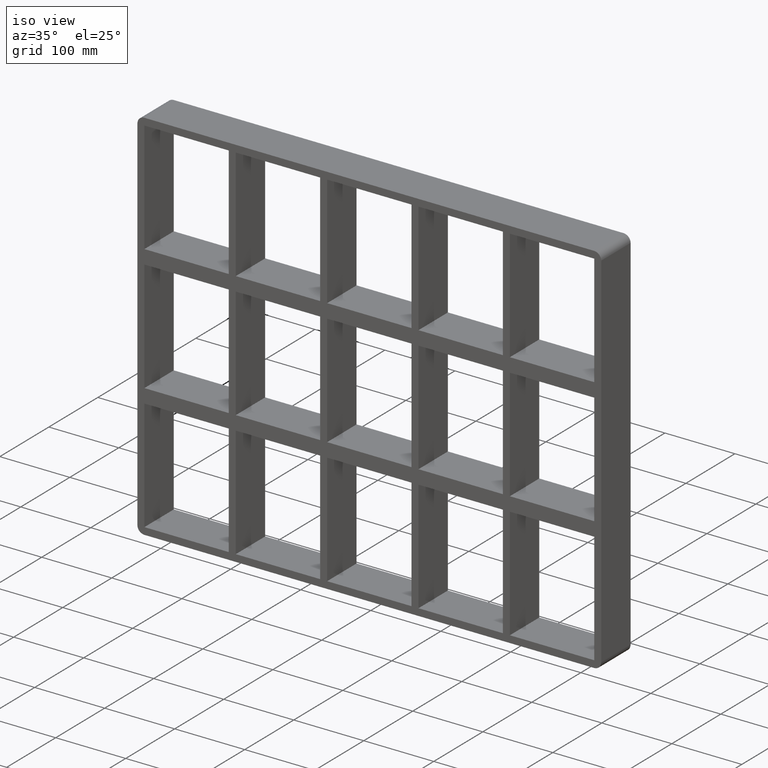
[diagram: clean part render]
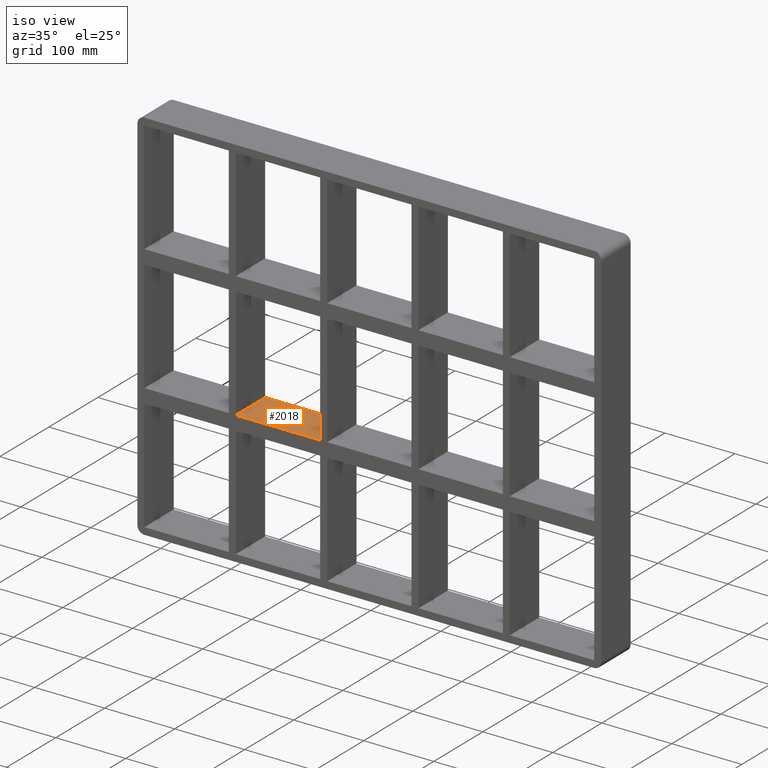
[diagram: same view with one face highlighted and labeled with its STEP entity id]
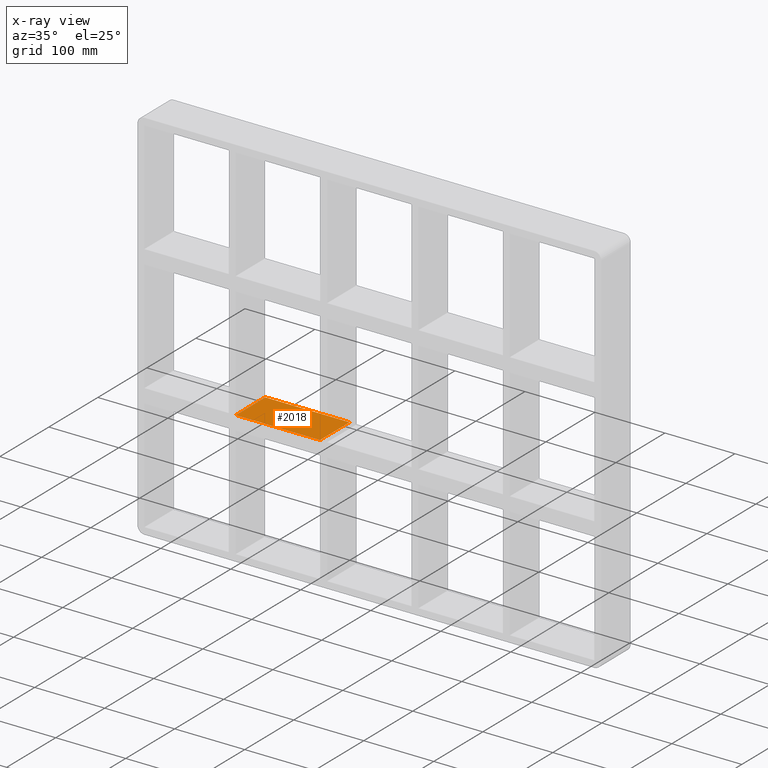
[diagram: x-ray of the same camera — body ghosted, the highlighted face saturated]
A machine part, iso view. The second image highlights one B-rep face of the part: STEP entity #2018.
The next image is the same camera in x-ray: the body ghosted, the highlighted face saturated — about 0% of this face is hidden behind the body in this view.
In plain terms, the highlighted planar face has unit normal (0, 0, 1).
Its self-contained STEP definition (entity closure, byte-faithful):
#1046=CARTESIAN_POINT('',(-190.75000000000728,57.0,-79.749999999999943));
#1047=VERTEX_POINT('',#1046);
#1054=CARTESIAN_POINT('',(-70.250000000001322,57.0,-79.749999999999943));
#1055=VERTEX_POINT('',#1054);
#1056=CARTESIAN_POINT('',(-190.75000000000728,57.0,-79.749999999999943));
#1057=DIRECTION('',(1.0,0.0,0.0));
#1058=VECTOR('',#1057,120.50000000000594);
#1059=LINE('',#1056,#1058);
#1060=EDGE_CURVE('',#1047,#1055,#1059,.T.);
#1479=CARTESIAN_POINT('',(-70.250000000001322,-3.0,-79.749999999999943));
#1480=VERTEX_POINT('',#1479);
#1481=CARTESIAN_POINT('',(-70.25000000000135,-3.0,-79.749999999999943));
#1482=DIRECTION('',(0.0,1.0,0.0));
#1483=VECTOR('',#1482,60.0);
#1484=LINE('',#1481,#1483);
#1485=EDGE_CURVE('',#1480,#1055,#1484,.T.);
#1784=CARTESIAN_POINT('',(-190.75000000000728,-3.0,-79.749999999999943));
#1785=VERTEX_POINT('',#1784);
#1786=CARTESIAN_POINT('',(-190.75000000000728,-3.0,-79.749999999999943));
#1787=DIRECTION('',(1.0,0.0,0.0));
#1788=VECTOR('',#1787,120.50000000000594);
#1789=LINE('',#1786,#1788);
#1790=EDGE_CURVE('',#1785,#1480,#1789,.T.);
#2002=CARTESIAN_POINT('',(-321.24999999999972,-3.0,-79.749999999999943));
#2003=DIRECTION('',(0.0,0.0,1.0));
#2004=DIRECTION('',(1.0,0.0,0.0));
#2005=AXIS2_PLACEMENT_3D('',#2002,#2003,#2004);
#2006=PLANE('',#2005);
#2007=ORIENTED_EDGE('',*,*,#1485,.T.);
#2008=ORIENTED_EDGE('',*,*,#1060,.F.);
#2009=CARTESIAN_POINT('',(-190.75000000000728,-3.0,-79.749999999999943));
#2010=DIRECTION('',(0.0,1.0,0.0));
#2011=VECTOR('',#2010,60.0);
#2012=LINE('',#2009,#2011);
#2013=EDGE_CURVE('',#1785,#1047,#2012,.T.);
#2014=ORIENTED_EDGE('',*,*,#2013,.F.);
#2015=ORIENTED_EDGE('',*,*,#1790,.T.);
#2016=EDGE_LOOP('',(#2007,#2008,#2014,#2015));
#2017=FACE_OUTER_BOUND('',#2016,.T.);
#2018=ADVANCED_FACE('',(#2017),#2006,.T.);